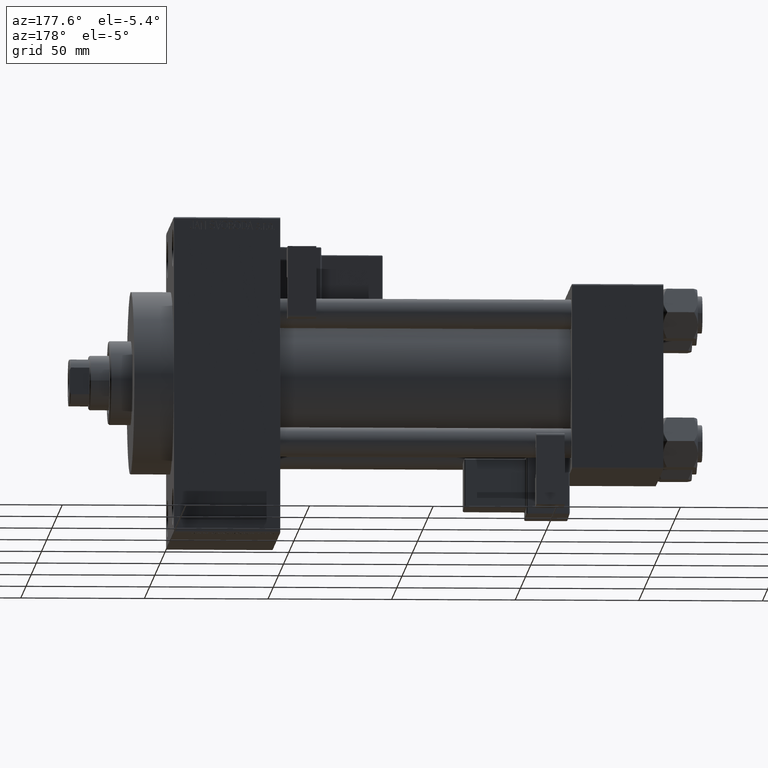
[diagram: clean part render]
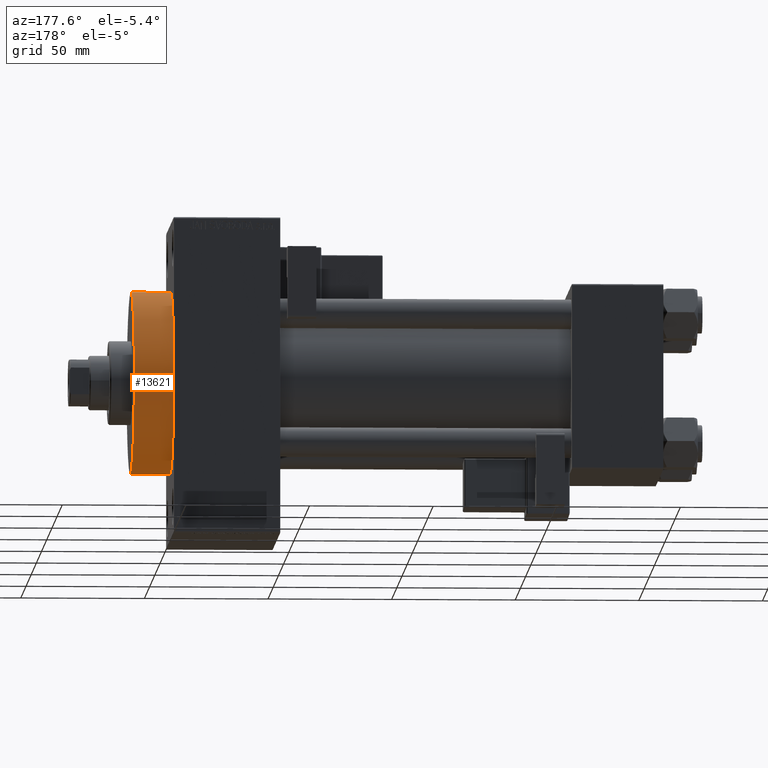
[diagram: same view with one face highlighted and labeled with its STEP entity id]
A machine part, auxiliary view. The second image highlights one B-rep face of the part: STEP entity #13621.
In plain terms, the highlighted cylindrical surface (partial cylindrical patch) has radius 37 mm, axis along (-1, -0, -0).
Its self-contained STEP definition (entity closure, byte-faithful):
#232 = EDGE_CURVE ( 'NONE', #35882, #14586, #15989, .T. ) ;
#1780 = EDGE_CURVE ( 'NONE', #14586, #31625, #44662, .T. ) ;
#1810 = DIRECTION ( 'NONE',  ( 0.000000000000000000, 0.000000000000000000, -1.000000000000000000 ) ) ;
#4745 = CARTESIAN_POINT ( 'NONE',  ( 198.0000000000000000, 4.531193156845206793E-15, -37.00000000000000000 ) ) ;
#5265 = ORIENTED_EDGE ( 'NONE', *, *, #232, .F. ) ;
#5637 = EDGE_LOOP ( 'NONE', ( #5265, #38037, #41676, #5673 ) ) ;
#5673 = ORIENTED_EDGE ( 'NONE', *, *, #1780, .F. ) ;
#5715 = EDGE_CURVE ( 'NONE', #13957, #31625, #31356, .T. ) ;
#8939 = CARTESIAN_POINT ( 'NONE',  ( 198.0000000000000000, 0.000000000000000000, 37.00000000000000000 ) ) ;
#9003 = VECTOR ( 'NONE', #20171, 1000.000000000000000 ) ;
#9069 = CARTESIAN_POINT ( 'NONE',  ( 214.0000000000000284, 0.000000000000000000, 0.000000000000000000 ) ) ;
#9316 = EDGE_CURVE ( 'NONE', #35882, #13957, #38189, .T. ) ;
#9811 = AXIS2_PLACEMENT_3D ( 'NONE', #27247, #39007, #34751 ) ;
#10428 = DIRECTION ( 'NONE',  ( -1.000000000000000000, -0.000000000000000000, -0.000000000000000000 ) ) ;
#13621 = ADVANCED_FACE ( 'NONE', ( #18469 ), #44969, .T. ) ;
#13957 = VERTEX_POINT ( 'NONE', #4745 ) ;
#14586 = VERTEX_POINT ( 'NONE', #26189 ) ;
#15989 = CIRCLE ( 'NONE', #22352, 37.00000000000000000 ) ;
#17979 = DIRECTION ( 'NONE',  ( 0.000000000000000000, 0.000000000000000000, 1.000000000000000000 ) ) ;
#18469 = FACE_OUTER_BOUND ( 'NONE', #5637, .T. ) ;
#20171 = DIRECTION ( 'NONE',  ( -1.000000000000000000, -0.000000000000000000, -0.000000000000000000 ) ) ;
#21924 = AXIS2_PLACEMENT_3D ( 'NONE', #44237, #45217, #17979 ) ;
#22352 = AXIS2_PLACEMENT_3D ( 'NONE', #9069, #24294, #1810 ) ;
#23917 = CARTESIAN_POINT ( 'NONE',  ( 214.0000000000000284, 4.531193156845206793E-15, -37.00000000000000000 ) ) ;
#24294 = DIRECTION ( 'NONE',  ( 1.000000000000000000, 0.000000000000000000, 0.000000000000000000 ) ) ;
#24744 = CARTESIAN_POINT ( 'NONE',  ( 214.0000000000000284, 4.531193156845206793E-15, -37.00000000000000000 ) ) ;
#26189 = CARTESIAN_POINT ( 'NONE',  ( 214.0000000000000284, 0.000000000000000000, 37.00000000000000000 ) ) ;
#27247 = CARTESIAN_POINT ( 'NONE',  ( 198.0000000000000000, 0.000000000000000000, 0.000000000000000000 ) ) ;
#30426 = VECTOR ( 'NONE', #10428, 1000.000000000000000 ) ;
#31356 = CIRCLE ( 'NONE', #9811, 37.00000000000000000 ) ;
#31625 = VERTEX_POINT ( 'NONE', #8939 ) ;
#34751 = DIRECTION ( 'NONE',  ( 0.000000000000000000, 0.000000000000000000, -1.000000000000000000 ) ) ;
#35882 = VERTEX_POINT ( 'NONE', #24744 ) ;
#37411 = CARTESIAN_POINT ( 'NONE',  ( 214.0000000000000284, 0.000000000000000000, 37.00000000000000000 ) ) ;
#38037 = ORIENTED_EDGE ( 'NONE', *, *, #9316, .T. ) ;
#38189 = LINE ( 'NONE', #23917, #9003 ) ;
#39007 = DIRECTION ( 'NONE',  ( 1.000000000000000000, 0.000000000000000000, 0.000000000000000000 ) ) ;
#41676 = ORIENTED_EDGE ( 'NONE', *, *, #5715, .T. ) ;
#44237 = CARTESIAN_POINT ( 'NONE',  ( 214.0000000000000284, 0.000000000000000000, 0.000000000000000000 ) ) ;
#44662 = LINE ( 'NONE', #37411, #30426 ) ;
#44969 = CYLINDRICAL_SURFACE ( 'NONE', #21924, 37.00000000000000000 ) ;
#45217 = DIRECTION ( 'NONE',  ( -1.000000000000000000, -0.000000000000000000, -0.000000000000000000 ) ) ;